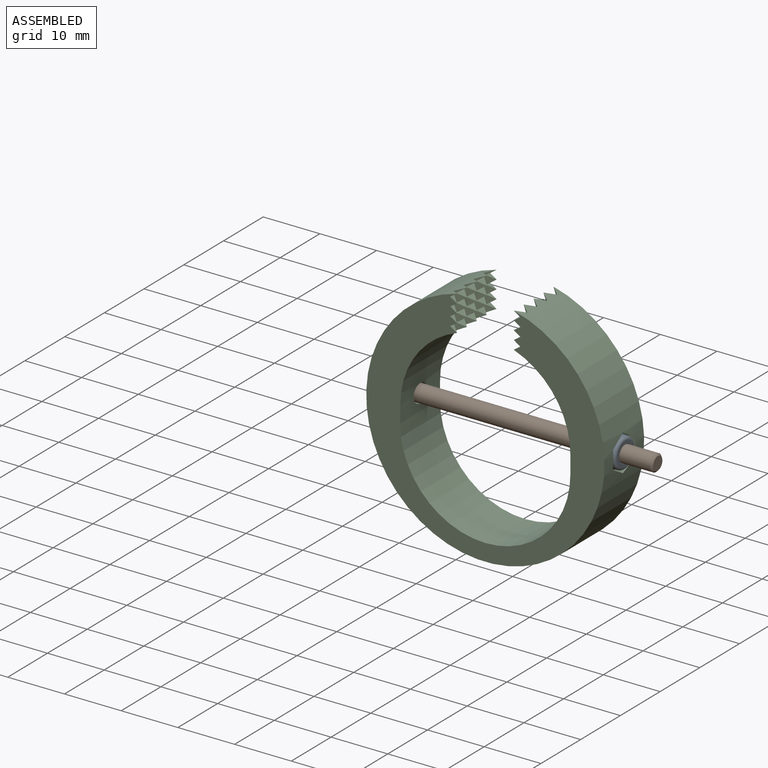
[diagram: assembled view]
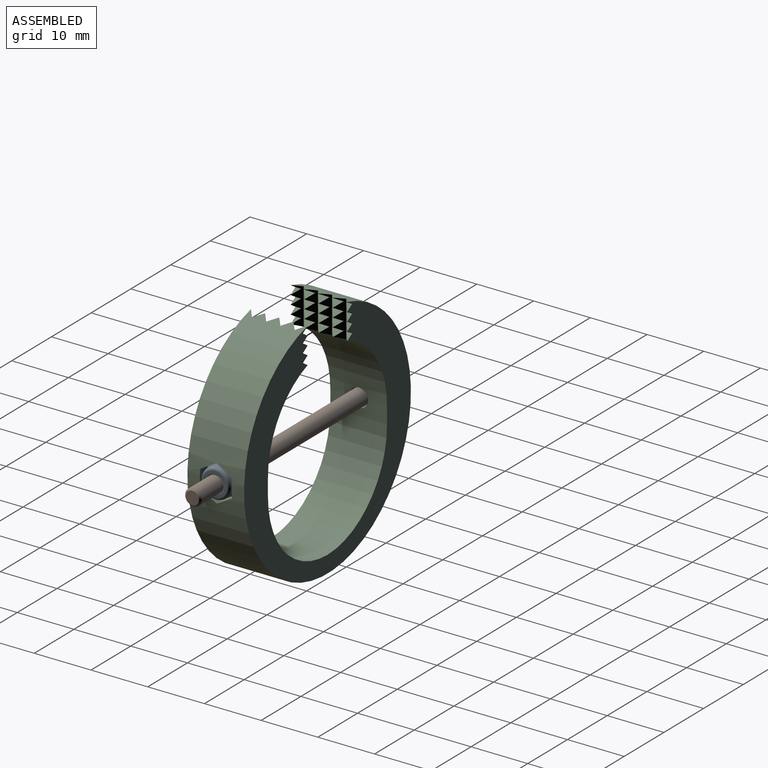
[diagram: assembled view, second angle]
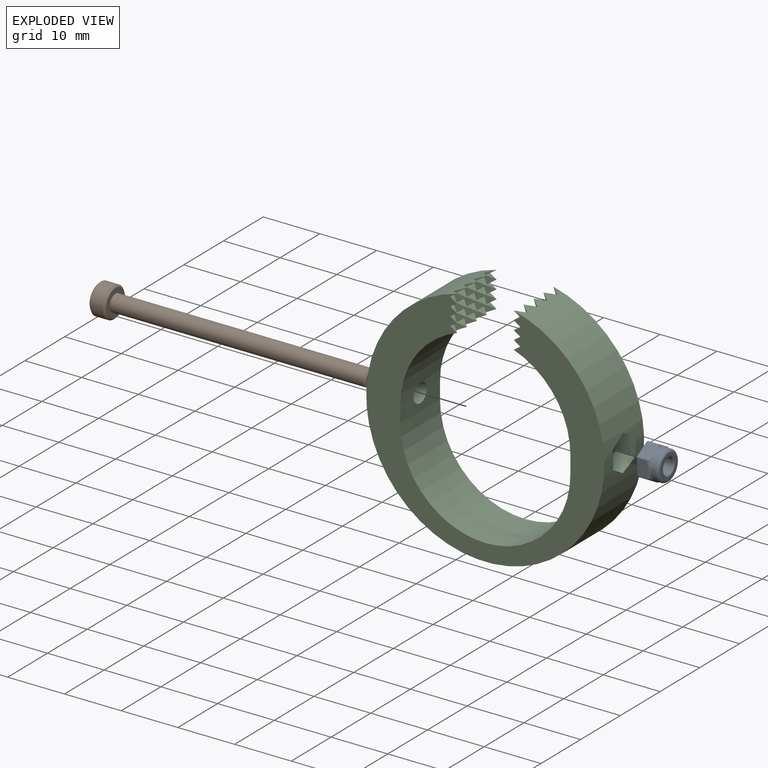
[diagram: exploded view]
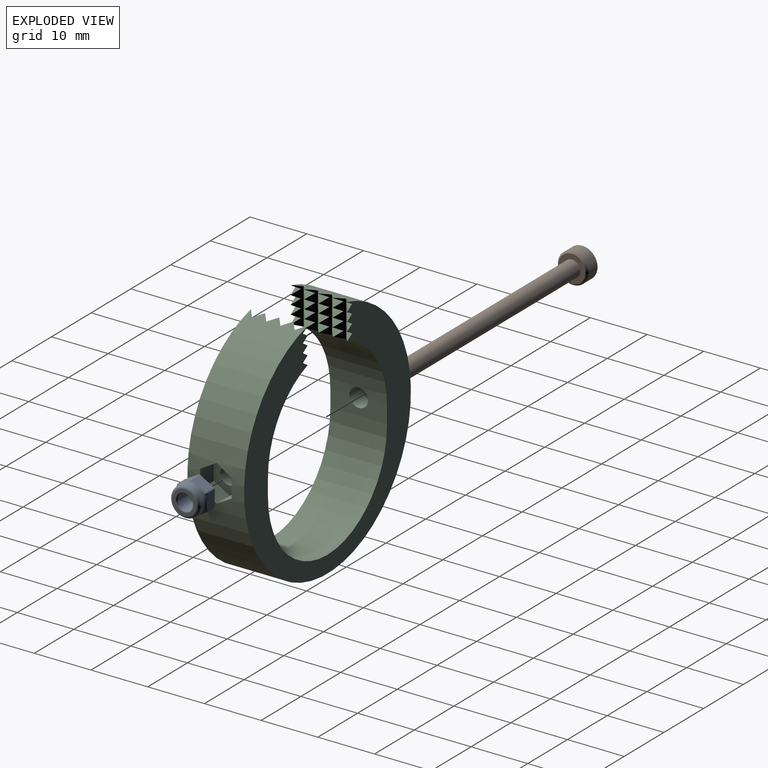
[diagram: exploded view, second angle]
ASSEMBLY  parts=3 mates=2
PART A: 67 faces, bbox 6.3x5.6x3.9 mm
  f0: plane 2.43x1.88mm, normal (0.87,-0.5,0), area 5mm2, adj f33,f37,f39,f55,f57,f59
  f1: plane 2.43x1.88mm, normal (0.87,0.5,0), area 5mm2, adj f30,f36,f39,f60,f62,f63
  f2: plane 2.8x1.88mm, normal (0,1,0), area 5mm2, adj f24,f30,f31,f52,f54,f56
  f3: plane 2.43x1.88mm, normal (-0.87,0.5,0), area 5mm2, adj f22,f24,f25,f44,f46,f48
  f4: plane 2.43x1.88mm, normal (-0.87,-0.5,0), area 5mm2, adj f22,f26,f27,f40,f41,f43
  f5: plane 2.8x1.88mm, normal (0,-1,0), area 5mm2, adj f27,f32,f33,f47,f49,f51
  f6: plane 5.6x4.85mm, normal (0,0,-1), area 12.2mm2, adj f25,f26,f31,f32,f36,f37,f66
  f7: cylinder r=2.58mm len=5.17mm, axis (0,0,-1), area 14.5mm2, adj f9,f10,f11,f12,f13,f14,f15,f16
  f8: plane 4.2x4.2mm, normal (0,0,1), area 5.7mm2, adj f9,f65
  f9: torus R=2.1mm, axis (0,0,1), area 11.5mm2, adj f7,f8
  f10: bspline ~1.94x1.3mm, area 0.3mm2, adj f7,f11,f12,f46
  f11: torus R=2.85mm, axis (0,0,1), area 0.3mm2, adj f7,f10,f13,f40,f44
  f12: torus R=2.85mm, axis (0,0,1), area 0.3mm2, adj f7,f10,f14,f48,f52
  f13: bspline ~1.95x1.29mm, area 0.3mm2, adj f7,f11,f15,f41
  f14: bspline ~2.17x0.33mm, area 0.3mm2, adj f7,f12,f16,f54
  f15: torus R=2.85mm, axis (0,0,1), area 0.3mm2, adj f7,f13,f17,f43,f47
  f16: torus R=2.85mm, axis (0,0,1), area 0.3mm2, adj f7,f14,f18,f56,f60
  f17: bspline ~2.17x0.33mm, area 0.3mm2, adj f7,f15,f19,f49
  f18: bspline ~1.95x1.29mm, area 0.3mm2, adj f7,f16,f20,f62
  f19: torus R=2.85mm, axis (0,0,1), area 0.3mm2, adj f7,f17,f21,f51,f55
  f20: torus R=2.85mm, axis (0,0,1), area 0.3mm2, adj f7,f18,f21,f59,f63
  f21: bspline ~1.94x1.3mm, area 0.3mm2, adj f7,f19,f20,f57
  f22: cylinder r=0.27mm len=1.63mm, axis (0,0,-1), area 0.5mm2, adj f3,f4,f23,f42
  f23: sphere r=0.27mm, area 0.1mm2, adj f22,f25,f26
  f24: cylinder r=0.27mm len=1.63mm, axis (0,0,-1), area 0.5mm2, adj f2,f3,f28,f50
  f25: cylinder r=0.27mm len=2.56mm, axis (-0.5,-0.87,0), area 1.2mm2, adj f3,f6,f23,f28
  f26: cylinder r=0.27mm len=2.56mm, axis (0.5,-0.87,0), area 1.2mm2, adj f4,f6,f23,f29
  f27: cylinder r=0.27mm len=1.63mm, axis (0,0,-1), area 0.5mm2, adj f4,f5,f29,f45
  f28: sphere r=0.27mm, area 0.1mm2, adj f24,f25,f31
  f29: sphere r=0.27mm, area 0.1mm2, adj f26,f27,f32
  f30: cylinder r=0.27mm len=1.63mm, axis (0,0,-1), area 0.5mm2, adj f1,f2,f34,f58
  f31: cylinder r=0.27mm len=2.8mm, axis (-1,0,0), area 1.2mm2, adj f2,f6,f28,f34
  f32: cylinder r=0.27mm len=2.8mm, axis (1,0,0), area 1.2mm2, adj f5,f6,f29,f35
  f33: cylinder r=0.27mm len=1.63mm, axis (0,0,-1), area 0.5mm2, adj f0,f5,f35,f53
  f34: sphere r=0.27mm, area 0.1mm2, adj f30,f31,f36
  f35: sphere r=0.27mm, area 0.1mm2, adj f32,f33,f37
  f36: cylinder r=0.27mm len=2.56mm, axis (-0.5,0.87,0), area 1.2mm2, adj f1,f6,f34,f38
  f37: cylinder r=0.27mm len=2.56mm, axis (0.5,0.87,0), area 1.2mm2, adj f0,f6,f35,f38
  f38: sphere r=0.27mm, area 0.1mm2, adj f36,f37,f39
  f39: cylinder r=0.27mm len=1.63mm, axis (0,0,-1), area 0.5mm2, adj f0,f1,f38,f61
  f40: bspline ~1.35x0.71mm, area 0.3mm2, adj f4,f11,f41,f42
  f41: bspline ~1.79x1.13mm, area 0.5mm2, adj f4,f13,f40,f43
  f42: bspline ~0.52x0.35mm, area 0.1mm2, adj f22,f40,f44
  f43: bspline ~1.15x1mm, area 0.3mm2, adj f4,f15,f41,f45
  f44: bspline ~1.35x0.71mm, area 0.3mm2, adj f3,f11,f42,f46
  f45: bspline ~0.52x0.3mm, area 0.1mm2, adj f27,f43,f47
  f46: bspline ~2.01x1.31mm, area -19.4mm2, adj f3,f10,f44,f48
  f47: bspline ~1.33x0.54mm, area 0.3mm2, adj f5,f15,f45,f49
  f48: bspline ~1.15x1mm, area 0.3mm2, adj f3,f12,f46,f50
  f49: bspline ~1.99x0.37mm, area 0.5mm2, adj f5,f17,f47,f51
  f50: bspline ~0.52x0.3mm, area 0.1mm2, adj f24,f48,f52
  f51: bspline ~1.33x0.54mm, area 0.3mm2, adj f5,f19,f49,f53
  f52: bspline ~1.33x0.54mm, area 0.3mm2, adj f2,f12,f50,f54
  f53: bspline ~0.52x0.3mm, area 0.1mm2, adj f33,f51,f55
  f54: bspline ~1.99x0.37mm, area 0.5mm2, adj f2,f14,f52,f56
  f55: bspline ~1.15x1mm, area 0.3mm2, adj f0,f19,f53,f57
  f56: bspline ~1.33x0.54mm, area 0.3mm2, adj f2,f16,f54,f58
  f57: bspline ~2.01x1.31mm, area -18.5mm2, adj f0,f21,f55,f59
  f58: bspline ~0.52x0.3mm, area 0.1mm2, adj f30,f56,f60
  f59: bspline ~1.35x0.71mm, area 0.3mm2, adj f0,f20,f57,f61
  f60: bspline ~1.15x1mm, area 0.3mm2, adj f1,f16,f58,f62
  f61: bspline ~0.52x0.35mm, area 0.1mm2, adj f39,f59,f63
  f62: bspline ~1.79x1.13mm, area 0.5mm2, adj f1,f18,f60,f63
  f63: bspline ~1.35x0.71mm, area 0.3mm2, adj f1,f20,f61,f62
  f64: cylinder r=1.35mm len=3.41mm, axis (0,0,-1), area 28.9mm2, adj f65,f66
  f65: torus R=1.62mm, axis (0,0,1), area 3.8mm2, adj f8,f64
  f66: torus R=1.62mm, axis (0,0,1), area 3.8mm2, adj f6,f64
PART B: 15 faces, bbox 5.4x5.4x47.9 mm
  f0: cylinder r=2.7mm len=5.4mm, axis (0,0,-1), area 38.8mm2, adj f13,f14
  f1: plane 4.8x4.8mm, normal (0,0,1), area 11.4mm2, adj f3,f13
  f2: plane 4.8x4.8mm, normal (0,0,-1), area 11.3mm2, adj f5,f6,f7,f8,f9,f10,f14
  f3: cylinder r=1.46mm len=44.7mm, axis (0,0,-1), area 411.5mm2, adj f1,f12
  f4: plane 2.33x2.33mm, normal (0,0,1), area 4.3mm2, adj f12
  f5: plane 1.4x1.3mm, normal (-0.5,-0.87,0), area 2.1mm2, adj f2,f6,f10,f11
  f6: plane 1.62x1.3mm, normal (-1,0,0), area 2.1mm2, adj f2,f5,f7,f11
  f7: plane 1.4x1.3mm, normal (-0.5,0.87,0), area 2.1mm2, adj f2,f6,f8,f11
  f8: plane 1.4x1.3mm, normal (0.5,0.87,0), area 2.1mm2, adj f2,f7,f9,f11
  f9: plane 1.62x1.3mm, normal (1,0,0), area 2.1mm2, adj f2,f8,f10,f11
  f10: plane 1.4x1.3mm, normal (0.5,-0.87,0), area 2.1mm2, adj f2,f5,f9,f11
  f11: plane 3.23x2.8mm, normal (0,0,-1), area 6.8mm2, adj f5,f6,f7,f8,f9,f10
  f12: cone r=1.17mm half-angle=45deg, axis (0,0,-1), area 3.5mm2, adj f3,f4
  f13: cone r=2.4mm half-angle=45deg, axis (0,0,-1), area 6.8mm2, adj f0,f1
  f14: cone r=2.7mm half-angle=45deg, axis (0,0,1), area 6.8mm2, adj f0,f2
PART C: 115 faces, bbox 42x10x41.4 mm
  f0: cylinder r=15mm len=14.24mm, axis (0,1,0), area 172.9mm2, adj f1,f76,f78,f98,f99,f100,f101,f102
  f1: plane 42x41.4mm, normal (0,1,0), area 520.3mm2, adj f0,f2,f3,f5,f7,f9,f11,f13
  f2: cylinder r=21mm len=42mm, axis (0,1,0), area 1150.1mm2, adj f1,f76,f79,f80,f81,f82,f83,f84
  f3: cylinder r=15mm len=14.24mm, axis (0,1,0), area 172.9mm2, adj f1,f76,f77,f96,f97,f104,f105,f108
  f4: plane 2x1.2mm, normal (-0.55,0,-0.84), area 1.4mm2, adj f6,f104,f111
  f5: plane 1.2x1mm, normal (-0.55,0,-0.84), area 0.7mm2, adj f1,f7,f110
  f6: plane 2x1.2mm, normal (-0.55,0,0.84), area 1.4mm2, adj f4,f104,f111
  f7: plane 1.2x1mm, normal (-0.55,0,0.84), area 0.7mm2, adj f1,f5,f110
  f8: plane 2x1.2mm, normal (-0.55,0,-0.84), area 1.4mm2, adj f10,f104,f111
  f9: plane 1.2x1mm, normal (-0.55,0,-0.84), area 0.7mm2, adj f1,f11,f110
  f10: plane 2x1.2mm, normal (-0.55,0,0.84), area 1.4mm2, adj f8,f104,f111
  f11: plane 1.2x1mm, normal (-0.55,0,0.84), area 0.7mm2, adj f1,f9,f110
  f12: plane 2x1.2mm, normal (-0.55,0,-0.84), area 1.4mm2, adj f14,f104,f111
  f13: plane 1.2x1mm, normal (-0.55,0,-0.84), area 0.7mm2, adj f1,f15,f110
  f14: plane 2x1.2mm, normal (-0.55,0,0.84), area 1.4mm2, adj f12,f104,f111
  f15: plane 1.2x1mm, normal (-0.55,0,0.84), area 0.7mm2, adj f1,f13,f110
  f16: plane 2x1.2mm, normal (-0.55,0,-0.84), area 1.4mm2, adj f18,f104,f111
  f17: plane 1.2x1mm, normal (-0.55,0,-0.84), area 0.7mm2, adj f1,f19,f110
  f18: plane 2x1.2mm, normal (-0.55,0,0.84), area 1.4mm2, adj f16,f104,f111
  f19: plane 1.2x1mm, normal (-0.55,0,0.84), area 0.7mm2, adj f1,f17,f110
  f20: plane 2x1.2mm, normal (-0.55,0,-0.84), area 1.4mm2, adj f22,f97,f109
  f21: plane 1.2x1mm, normal (-0.55,0,-0.84), area 0.7mm2, adj f23,f76,f108
  f22: plane 2x1.2mm, normal (-0.55,0,0.84), area 1.4mm2, adj f20,f97,f109
  f23: plane 1.2x1mm, normal (-0.55,0,0.84), area 0.7mm2, adj f21,f76,f108
  f24: plane 2x1.2mm, normal (-0.55,0,-0.84), area 1.4mm2, adj f26,f97,f109
  f25: plane 1.2x1mm, normal (-0.55,0,-0.84), area 0.7mm2, adj f27,f76,f108
  f26: plane 2x1.2mm, normal (-0.55,0,0.84), area 1.4mm2, adj f24,f97,f109
  f27: plane 1.2x1mm, normal (-0.55,0,0.84), area 0.7mm2, adj f25,f76,f108
  f28: plane 2x1.2mm, normal (-0.55,0,-0.84), area 1.4mm2, adj f30,f97,f109
  f29: plane 1.2x1mm, normal (-0.55,0,-0.84), area 0.7mm2, adj f31,f76,f108
  f30: plane 2x1.2mm, normal (-0.55,0,0.84), area 1.4mm2, adj f28,f97,f109
  f31: plane 1.2x1mm, normal (-0.55,0,0.84), area 0.7mm2, adj f29,f76,f108
  f32: plane 2x1.2mm, normal (-0.55,0,-0.84), area 1.4mm2, adj f34,f97,f109
  f33: plane 1.2x1mm, normal (-0.55,0,-0.84), area 0.7mm2, adj f35,f76,f108
  f34: plane 2x1.2mm, normal (-0.55,0,0.84), area 1.4mm2, adj f32,f97,f109
  f35: plane 1.2x1mm, normal (-0.55,0,0.84), area 0.7mm2, adj f33,f76,f108
  f36: plane 1.2x1mm, normal (0.55,0,0.84), area 0.7mm2, adj f1,f37,f106
  f37: plane 1.2x1mm, normal (0.55,0,-0.84), area 0.7mm2, adj f1,f36,f106
  f38: plane 1.2x1mm, normal (0.55,0,0.84), area 0.7mm2, adj f1,f39,f106
  f39: plane 1.2x1mm, normal (0.55,0,-0.84), area 0.7mm2, adj f1,f38,f106
  f40: plane 2x1.2mm, normal (-0.55,0,-0.84), area 1.4mm2, adj f41,f96,f105
  f41: plane 2x1.2mm, normal (-0.55,0,0.84), area 1.4mm2, adj f40,f96,f105
  f42: plane 2x1.2mm, normal (-0.55,0,-0.84), area 1.4mm2, adj f43,f96,f105
  f43: plane 2x1.2mm, normal (-0.55,0,0.84), area 1.4mm2, adj f42,f96,f105
  f44: plane 1.2x1mm, normal (0.55,0,0.84), area 0.7mm2, adj f1,f45,f106
  f45: plane 1.2x1mm, normal (0.55,0,-0.84), area 0.7mm2, adj f1,f44,f106
  f46: plane 2x1.2mm, normal (-0.55,0,-0.84), area 1.4mm2, adj f47,f96,f105
  f47: plane 2x1.2mm, normal (-0.55,0,0.84), area 1.4mm2, adj f46,f96,f105
  f48: plane 1.2x1mm, normal (0.55,0,0.84), area 0.7mm2, adj f1,f49,f106
  f49: plane 1.2x1mm, normal (0.55,0,-0.84), area 0.7mm2, adj f1,f48,f106
  f50: plane 2x1.2mm, normal (-0.55,0,-0.84), area 1.4mm2, adj f51,f96,f105
  f51: plane 2x1.2mm, normal (-0.55,0,0.84), area 1.4mm2, adj f50,f96,f105
  f52: plane 2x1.2mm, normal (0.55,0,0.84), area 1.4mm2, adj f53,f101,f103
  f53: plane 2x1.2mm, normal (0.55,0,-0.84), area 1.4mm2, adj f52,f101,f103
  f54: plane 2x1.2mm, normal (0.55,0,0.84), area 1.4mm2, adj f55,f101,f103
  f55: plane 2x1.2mm, normal (0.55,0,-0.84), area 1.4mm2, adj f54,f101,f103
  f56: plane 2x1.2mm, normal (0.55,0,0.84), area 1.4mm2, adj f57,f101,f103
  f57: plane 2x1.2mm, normal (0.55,0,-0.84), area 1.4mm2, adj f56,f101,f103
  f58: plane 2x1.2mm, normal (0.55,0,0.84), area 1.4mm2, adj f59,f101,f103
  f59: plane 2x1.2mm, normal (0.55,0,-0.84), area 1.4mm2, adj f58,f101,f103
  f60: plane 2x1.2mm, normal (0.55,0,0.84), area 1.4mm2, adj f62,f100,f107
  f61: plane 2x1.2mm, normal (0.55,0,0.84), area 1.4mm2, adj f63,f98,f102
  f62: plane 2x1.2mm, normal (0.55,0,-0.84), area 1.4mm2, adj f60,f100,f107
  f63: plane 2x1.2mm, normal (0.55,0,-0.84), area 1.4mm2, adj f61,f98,f102
  f64: plane 2x1.2mm, normal (0.55,0,0.84), area 1.4mm2, adj f66,f100,f107
  f65: plane 2x1.2mm, normal (0.55,0,0.84), area 1.4mm2, adj f67,f98,f102
  f66: plane 2x1.2mm, normal (0.55,0,-0.84), area 1.4mm2, adj f64,f100,f107
  f67: plane 2x1.2mm, normal (0.55,0,-0.84), area 1.4mm2, adj f65,f98,f102
  f68: plane 2x1.2mm, normal (0.55,0,0.84), area 1.4mm2, adj f70,f100,f107
  f69: plane 2x1.2mm, normal (0.55,0,0.84), area 1.4mm2, adj f71,f98,f102
  f70: plane 2x1.2mm, normal (0.55,0,-0.84), area 1.4mm2, adj f68,f100,f107
  f71: plane 2x1.2mm, normal (0.55,0,-0.84), area 1.4mm2, adj f69,f98,f102
  f72: plane 2x1.2mm, normal (0.55,0,0.84), area 1.4mm2, adj f74,f100,f107
  f73: plane 2x1.2mm, normal (0.55,0,0.84), area 1.4mm2, adj f75,f98,f102
  f74: plane 2x1.2mm, normal (0.55,0,-0.84), area 1.4mm2, adj f72,f100,f107
  f75: plane 2x1.2mm, normal (0.55,0,-0.84), area 1.4mm2, adj f73,f98,f102
  f76: plane 42x41.4mm, normal (0,-1,0), area 520.3mm2, adj f0,f2,f3,f21,f23,f25,f27,f29
  f77: cylinder r=1.65mm len=3.3mm, axis (1,0,0), area 26.2mm2, adj f3,f85,f113
  f78: cylinder r=1.65mm len=3.3mm, axis (1,0,0), area 32.4mm2, adj f0,f87,f114
  f79: plane 3.44x2.8mm, normal (0,-0.5,0.87), area 10.8mm2, adj f2,f80,f84,f85
  f80: plane 3.5x3.23mm, normal (0,-1,0), area 11.2mm2, adj f2,f79,f81,f85
  f81: plane 3.44x2.8mm, normal (0,-0.5,-0.87), area 10.8mm2, adj f2,f80,f82,f85
  f82: plane 3.44x2.8mm, normal (0,0.5,-0.87), area 10.8mm2, adj f2,f81,f83,f85
  f83: plane 3.5x3.23mm, normal (0,1,0), area 11.2mm2, adj f2,f82,f84,f85
  f84: plane 3.44x2.8mm, normal (0,0.5,0.87), area 10.8mm2, adj f2,f79,f83,f85
  f85: plane 6.45x5.59mm, normal (1,0,0), area 18.5mm2, adj f77,f79,f80,f81,f82,f83,f84
  f86: cylinder r=2.86mm len=5.72mm, axis (-1,0,0), area 50.3mm2, adj f2,f87
  f87: plane 5.72x5.72mm, normal (-1,0,0), area 17.1mm2, adj f78,f86
  f88: plane 1.2x1mm, normal (0.55,0,0.84), area 0.7mm2, adj f76,f89,f99
  f89: plane 1.2x1mm, normal (0.55,0,-0.84), area 0.7mm2, adj f76,f88,f99
  f90: plane 1.2x1mm, normal (0.55,0,0.84), area 0.7mm2, adj f76,f91,f99
  f91: plane 1.2x1mm, normal (0.55,0,-0.84), area 0.7mm2, adj f76,f90,f99
  f92: plane 1.2x1mm, normal (0.55,0,0.84), area 0.7mm2, adj f76,f93,f99
  f93: plane 1.2x1mm, normal (0.55,0,-0.84), area 0.7mm2, adj f76,f92,f99
  f94: plane 1.2x1mm, normal (0.55,0,0.84), area 0.7mm2, adj f76,f95,f99
  f95: plane 1.2x1mm, normal (0.55,0,-0.84), area 0.7mm2, adj f76,f94,f99
  f96: plane 6.89x1.51mm, normal (-0.64,-0.77,0), area 7.5mm2, adj f2,f3,f40,f41,f42,f43,f46,f47
  f97: plane 6.89x1.51mm, normal (-0.64,0.77,0), area 7.5mm2, adj f2,f3,f20,f22,f24,f26,f28,f30
  f98: plane 6.89x1.51mm, normal (0.64,-0.77,0), area 7.5mm2, adj f0,f2,f61,f63,f65,f67,f69,f71
  f99: plane 6.89x1.51mm, normal (0.64,0.77,0), area 7.5mm2, adj f0,f2,f88,f89,f90,f91,f92,f93
  f100: plane 6.89x1.51mm, normal (0.64,-0.77,0), area 7.5mm2, adj f0,f2,f60,f62,f64,f66,f68,f70
  f101: plane 6.89x1.51mm, normal (0.64,0.77,0), area 7.5mm2, adj f0,f2,f52,f53,f54,f55,f56,f57
  f102: plane 6.89x1.51mm, normal (0.64,0.77,0), area 7.5mm2, adj f0,f2,f61,f63,f65,f67,f69,f71
  f103: plane 6.89x1.51mm, normal (0.64,-0.77,0), area 7.5mm2, adj f0,f2,f52,f53,f54,f55,f56,f57
  f104: plane 6.89x1.51mm, normal (-0.64,-0.77,0), area 7.5mm2, adj f2,f3,f4,f6,f8,f10,f12,f14
  f105: plane 6.89x1.51mm, normal (-0.64,0.77,0), area 7.5mm2, adj f2,f3,f40,f41,f42,f43,f46,f47
  f106: plane 6.89x1.51mm, normal (0.64,-0.77,0), area 7.5mm2, adj f0,f2,f36,f37,f38,f39,f44,f45
  f107: plane 6.89x1.51mm, normal (0.64,0.77,0), area 7.5mm2, adj f0,f2,f60,f62,f64,f66,f68,f70
  f108: plane 6.89x1.51mm, normal (-0.64,0.77,0), area 7.5mm2, adj f2,f3,f21,f23,f25,f27,f29,f31
  f109: plane 6.89x1.51mm, normal (-0.64,-0.77,0), area 7.5mm2, adj f2,f3,f20,f22,f24,f26,f28,f30
  f110: plane 6.89x1.51mm, normal (-0.64,-0.77,0), area 7.5mm2, adj f2,f3,f5,f7,f9,f11,f13,f15
  f111: plane 6.89x1.51mm, normal (-0.64,0.77,0), area 7.5mm2, adj f2,f3,f4,f6,f8,f10,f12,f14
  f112: cylinder r=15mm len=30mm, axis (0,-1,0), area 473.2mm2, adj f1,f76,f113,f114
  f113: cylinder r=218.35mm len=10mm, axis (0,1,0), area 24.1mm2, adj f1,f3,f76,f77,f112
  f114: cylinder r=218.35mm len=10mm, axis (0,-1,0), area 24.1mm2, adj f0,f1,f76,f78,f112
PLACE A rot(axis=(0,1,0),90deg) t=(12.28,-4.78,7.95)mm
PLACE B rot(axis=(0.71,0,0.71),180deg) t=(-25.95,-4.78,7.95)mm
PLACE C t=(-4.96,0.22,7.95)mm
MATE fastened B.f0 <-> C.f86  axis (1,0,0) through (-23.06,-4.78,7.95)mm
MATE fastened A.f64 <-> C.f77  axis (1,0,0) through (12.54,-4.78,7.95)mm
